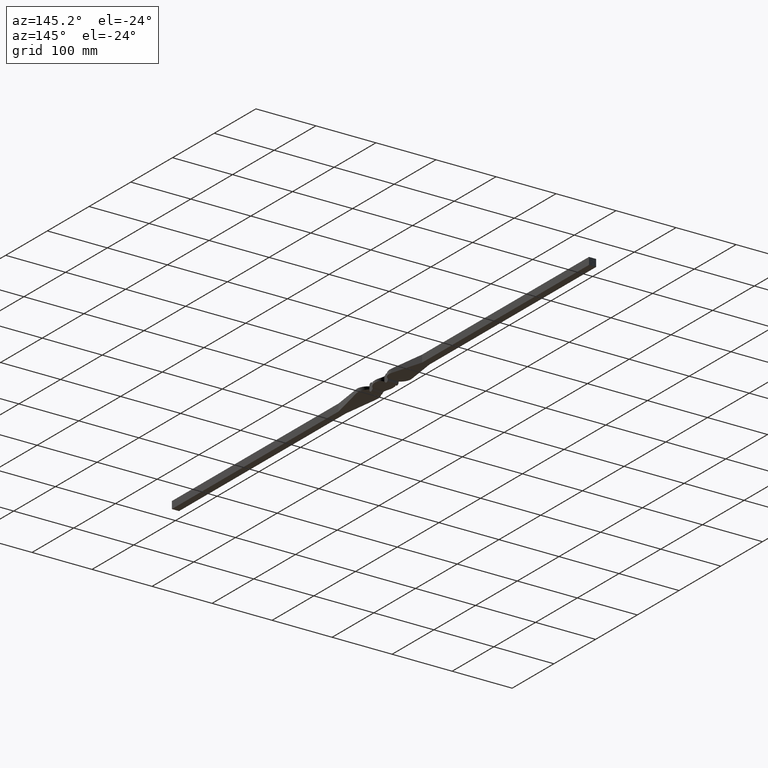
[diagram: clean part render]
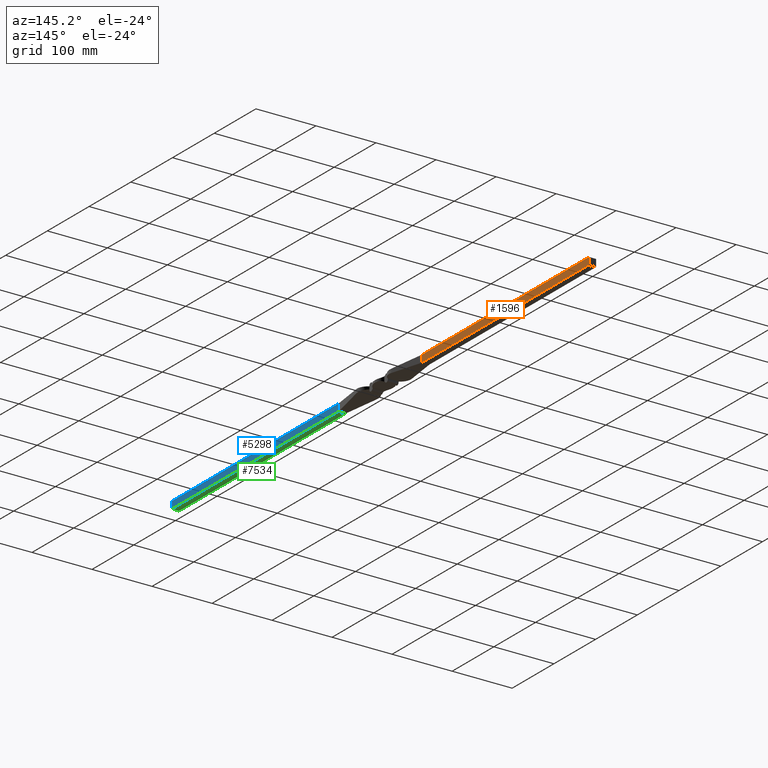
[diagram: same view with three faces highlighted in distinct colors, each labeled with its STEP entity id]
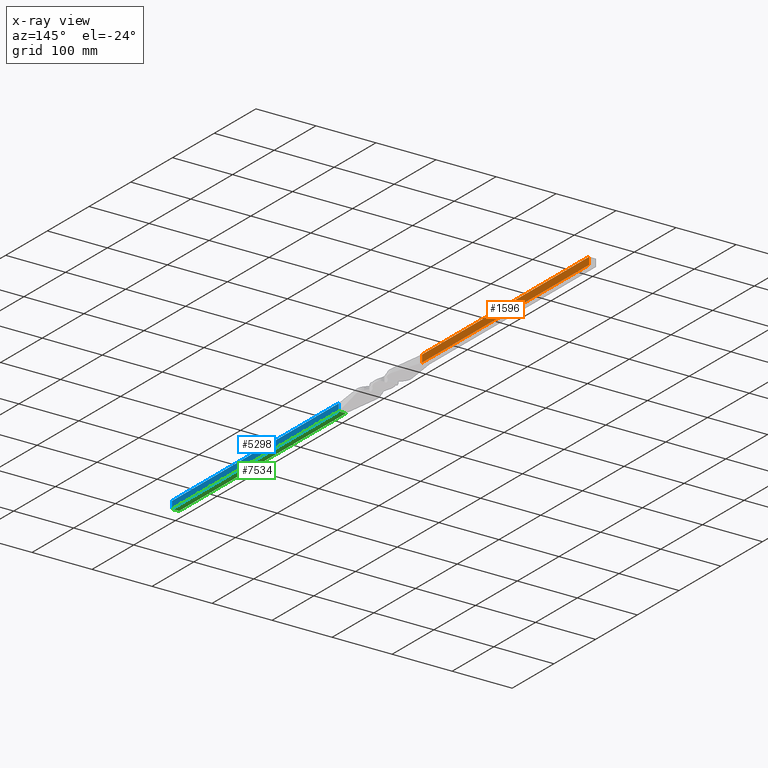
[diagram: x-ray of the same camera — body ghosted, the three highlighted faces saturated]
A machine part, auxiliary view with three faces highlighted in distinct colors.
The next image is the same camera in x-ray (body ghosted, the three faces saturated) — at least one of them is partly hidden behind the body in this view.
Their STEP definitions:

[orange] entity #1596 — the highlighted planar face has unit normal (-1, 0, 0).
#250 = CARTESIAN_POINT ( 'NONE',  ( 6.000000000000000000, 1016.970562748477278, 6.000000000000000000 ) ) ;
#416 = LINE ( 'NONE', #6827, #9128 ) ;
#1125 = ORIENTED_EDGE ( 'NONE', *, *, #8612, .F. ) ;
#1596 = ADVANCED_FACE ( 'NONE', ( #5770 ), #8974, .F. ) ;
#2204 = VECTOR ( 'NONE', #7290, 1000.000000000000000 ) ;
#2641 = ORIENTED_EDGE ( 'NONE', *, *, #9193, .F. ) ;
#3105 = CARTESIAN_POINT ( 'NONE',  ( 5.999999999999999112, 1016.970562748477278, -6.000000000000000000 ) ) ;
#4181 = DIRECTION ( 'NONE',  ( -7.228014483236695816E-17, -0.000000000000000000, -1.000000000000000000 ) ) ;
#4473 = VECTOR ( 'NONE', #5573, 1000.000000000000000 ) ;
#4723 = CARTESIAN_POINT ( 'NONE',  ( 5.999999999999999112, 500.0000000000000000, -6.000000000000000000 ) ) ;
#4750 = DIRECTION ( 'NONE',  ( -0.000000000000000000, -1.000000000000000000, -0.000000000000000000 ) ) ;
#5323 = VECTOR ( 'NONE', #4750, 1000.000000000000000 ) ;
#5504 = EDGE_LOOP ( 'NONE', ( #2641, #10612, #11378, #1125 ) ) ;
#5573 = DIRECTION ( 'NONE',  ( -0.000000000000000000, -1.000000000000000000, -0.000000000000000000 ) ) ;
#5770 = FACE_OUTER_BOUND ( 'NONE', #5504, .T. ) ;
#5965 = CARTESIAN_POINT ( 'NONE',  ( 5.999999999999999112, 500.0000000000000000, -6.000000000000000000 ) ) ;
#6038 = VERTEX_POINT ( 'NONE', #11314 ) ;
#6359 = VERTEX_POINT ( 'NONE', #9717 ) ;
#6452 = EDGE_CURVE ( 'NONE', #10468, #6038, #8740, .T. ) ;
#6543 = AXIS2_PLACEMENT_3D ( 'NONE', #9988, #9944, #10899 ) ;
#6827 = CARTESIAN_POINT ( 'NONE',  ( 5.999999999999999112, 100.0000000000000000, -6.000000000000000000 ) ) ;
#6847 = LINE ( 'NONE', #3105, #5323 ) ;
#7290 = DIRECTION ( 'NONE',  ( -7.228014483236695816E-17, 0.000000000000000000, -1.000000000000000000 ) ) ;
#7576 = LINE ( 'NONE', #4723, #2204 ) ;
#7736 = EDGE_CURVE ( 'NONE', #6038, #6359, #416, .T. ) ;
#8352 = CARTESIAN_POINT ( 'NONE',  ( 6.000000000000000000, 500.0000000000000000, 6.000000000000000000 ) ) ;
#8612 = EDGE_CURVE ( 'NONE', #11404, #6359, #6847, .T. ) ;
#8740 = LINE ( 'NONE', #250, #4473 ) ;
#8974 = PLANE ( 'NONE',  #6543 ) ;
#9128 = VECTOR ( 'NONE', #4181, 1000.000000000000000 ) ;
#9193 = EDGE_CURVE ( 'NONE', #10468, #11404, #7576, .T. ) ;
#9717 = CARTESIAN_POINT ( 'NONE',  ( 6.000000000000000000, 100.0000000000000000, -6.000000000000000000 ) ) ;
#9944 = DIRECTION ( 'NONE',  ( -1.000000000000000000, 0.000000000000000000, 7.228014483236695816E-17 ) ) ;
#9988 = CARTESIAN_POINT ( 'NONE',  ( 5.999999999999999112, 1016.970562748477278, -6.000000000000000000 ) ) ;
#10468 = VERTEX_POINT ( 'NONE', #8352 ) ;
#10612 = ORIENTED_EDGE ( 'NONE', *, *, #6452, .T. ) ;
#10899 = DIRECTION ( 'NONE',  ( 7.228014483236695816E-17, 0.000000000000000000, 1.000000000000000000 ) ) ;
#11314 = CARTESIAN_POINT ( 'NONE',  ( 6.000000000000000000, 100.0000000000000000, 6.000000000000000000 ) ) ;
#11378 = ORIENTED_EDGE ( 'NONE', *, *, #7736, .T. ) ;
#11404 = VERTEX_POINT ( 'NONE', #5965 ) ;

[blue] entity #5298 — the highlighted planar face has unit normal (-1, 0, 0).
#71 = CARTESIAN_POINT ( 'NONE',  ( 6.000000000000000000, -100.0000000000000284, 6.000000000000000000 ) ) ;
#422 = LINE ( 'NONE', #4488, #5470 ) ;
#489 = CARTESIAN_POINT ( 'NONE',  ( 6.000000000000000000, -100.0000000000000284, -6.000000000000000000 ) ) ;
#1172 = AXIS2_PLACEMENT_3D ( 'NONE', #9595, #6740, #11370 ) ;
#1243 = LINE ( 'NONE', #10375, #7871 ) ;
#1393 = VERTEX_POINT ( 'NONE', #7098 ) ;
#1440 = ORIENTED_EDGE ( 'NONE', *, *, #8157, .T. ) ;
#4109 = EDGE_LOOP ( 'NONE', ( #7101, #9406, #1440, #7685 ) ) ;
#4297 = EDGE_CURVE ( 'NONE', #1393, #11598, #422, .T. ) ;
#4488 = CARTESIAN_POINT ( 'NONE',  ( 5.999999999995758060, -1016.970562748477278, 6.000000000000000000 ) ) ;
#4978 = DIRECTION ( 'NONE',  ( 4.625929269271485322E-15, 1.000000000000000000, -0.000000000000000000 ) ) ;
#5298 = ADVANCED_FACE ( 'NONE', ( #7048 ), #7802, .F. ) ;
#5470 = VECTOR ( 'NONE', #8101, 1000.000000000000000 ) ;
#5558 = LINE ( 'NONE', #9248, #11024 ) ;
#5937 = CARTESIAN_POINT ( 'NONE',  ( 5.999999999998149036, -500.0000000000000000, -6.000000000000000000 ) ) ;
#6311 = VERTEX_POINT ( 'NONE', #489 ) ;
#6362 = DIRECTION ( 'NONE',  ( 0.000000000000000000, 0.000000000000000000, -1.000000000000000000 ) ) ;
#6681 = EDGE_CURVE ( 'NONE', #1393, #7226, #8600, .T. ) ;
#6740 = DIRECTION ( 'NONE',  ( -1.000000000000000000, 4.625929269271485322E-15, 0.000000000000000000 ) ) ;
#7048 = FACE_OUTER_BOUND ( 'NONE', #4109, .T. ) ;
#7098 = CARTESIAN_POINT ( 'NONE',  ( 6.000000000000000000, -500.0000000000000000, 6.000000000000000000 ) ) ;
#7101 = ORIENTED_EDGE ( 'NONE', *, *, #4297, .F. ) ;
#7226 = VERTEX_POINT ( 'NONE', #5937 ) ;
#7685 = ORIENTED_EDGE ( 'NONE', *, *, #10426, .F. ) ;
#7802 = PLANE ( 'NONE',  #1172 ) ;
#7871 = VECTOR ( 'NONE', #4978, 1000.000000000000000 ) ;
#8101 = DIRECTION ( 'NONE',  ( 4.625929269271485322E-15, 1.000000000000000000, -0.000000000000000000 ) ) ;
#8157 = EDGE_CURVE ( 'NONE', #7226, #6311, #1243, .T. ) ;
#8600 = LINE ( 'NONE', #9027, #9847 ) ;
#9027 = CARTESIAN_POINT ( 'NONE',  ( 5.999999999998149036, -500.0000000000000000, -6.000000000000000000 ) ) ;
#9091 = DIRECTION ( 'NONE',  ( 0.000000000000000000, 0.000000000000000000, -1.000000000000000000 ) ) ;
#9248 = CARTESIAN_POINT ( 'NONE',  ( 6.000000000000000000, -99.99999999999997158, 6.000000000000000000 ) ) ;
#9406 = ORIENTED_EDGE ( 'NONE', *, *, #6681, .T. ) ;
#9595 = CARTESIAN_POINT ( 'NONE',  ( 5.999999999995758060, -1016.970562748477278, -6.000000000000000000 ) ) ;
#9847 = VECTOR ( 'NONE', #6362, 1000.000000000000000 ) ;
#10375 = CARTESIAN_POINT ( 'NONE',  ( 5.999999999995758060, -1016.970562748477278, -6.000000000000000000 ) ) ;
#10426 = EDGE_CURVE ( 'NONE', #11598, #6311, #5558, .T. ) ;
#11024 = VECTOR ( 'NONE', #9091, 1000.000000000000000 ) ;
#11370 = DIRECTION ( 'NONE',  ( -4.625929269271485322E-15, -1.000000000000000000, 0.000000000000000000 ) ) ;
#11598 = VERTEX_POINT ( 'NONE', #71 ) ;

[green] entity #7534 — the highlighted planar face has unit normal (0, 0, 1).
#158 = LINE ( 'NONE', #3172, #9997 ) ;
#489 = CARTESIAN_POINT ( 'NONE',  ( 6.000000000000000000, -100.0000000000000284, -6.000000000000000000 ) ) ;
#581 = EDGE_LOOP ( 'NONE', ( #9221, #8885, #8723, #2767 ) ) ;
#1223 = CARTESIAN_POINT ( 'NONE',  ( -6.000000000004242828, -1016.970562748477278, -6.000000000000000000 ) ) ;
#1243 = LINE ( 'NONE', #10375, #7871 ) ;
#1347 = VERTEX_POINT ( 'NONE', #6799 ) ;
#1512 = EDGE_CURVE ( 'NONE', #7226, #1347, #1831, .T. ) ;
#1831 = LINE ( 'NONE', #9725, #10833 ) ;
#2216 = PLANE ( 'NONE',  #10316 ) ;
#2489 = EDGE_CURVE ( 'NONE', #6311, #7151, #158, .T. ) ;
#2767 = ORIENTED_EDGE ( 'NONE', *, *, #2489, .F. ) ;
#3172 = CARTESIAN_POINT ( 'NONE',  ( 0.000000000000000000, -100.0000000000000000, -6.000000000000000000 ) ) ;
#3211 = DIRECTION ( 'NONE',  ( -1.000000000000000000, 4.625929269271485322E-15, -0.000000000000000000 ) ) ;
#3521 = EDGE_CURVE ( 'NONE', #1347, #7151, #11077, .T. ) ;
#3982 = DIRECTION ( 'NONE',  ( 0.000000000000000000, 0.000000000000000000, 1.000000000000000000 ) ) ;
#4978 = DIRECTION ( 'NONE',  ( 4.625929269271485322E-15, 1.000000000000000000, -0.000000000000000000 ) ) ;
#5937 = CARTESIAN_POINT ( 'NONE',  ( 5.999999999998149036, -500.0000000000000000, -6.000000000000000000 ) ) ;
#5996 = DIRECTION ( 'NONE',  ( 4.625929269271485322E-15, 1.000000000000000000, -0.000000000000000000 ) ) ;
#6073 = CARTESIAN_POINT ( 'NONE',  ( -6.000000000004242828, -1016.970562748477278, -6.000000000000000000 ) ) ;
#6311 = VERTEX_POINT ( 'NONE', #489 ) ;
#6660 = DIRECTION ( 'NONE',  ( 1.000000000000000000, 0.000000000000000000, -0.000000000000000000 ) ) ;
#6799 = CARTESIAN_POINT ( 'NONE',  ( -6.000000000001850964, -500.0000000000000000, -6.000000000000000000 ) ) ;
#6994 = DIRECTION ( 'NONE',  ( -1.000000000000000000, 0.000000000000000000, 0.000000000000000000 ) ) ;
#7151 = VERTEX_POINT ( 'NONE', #10311 ) ;
#7226 = VERTEX_POINT ( 'NONE', #5937 ) ;
#7534 = ADVANCED_FACE ( 'NONE', ( #9965 ), #2216, .F. ) ;
#7871 = VECTOR ( 'NONE', #4978, 1000.000000000000000 ) ;
#8157 = EDGE_CURVE ( 'NONE', #7226, #6311, #1243, .T. ) ;
#8158 = VECTOR ( 'NONE', #5996, 1000.000000000000000 ) ;
#8723 = ORIENTED_EDGE ( 'NONE', *, *, #3521, .T. ) ;
#8885 = ORIENTED_EDGE ( 'NONE', *, *, #1512, .T. ) ;
#9221 = ORIENTED_EDGE ( 'NONE', *, *, #8157, .F. ) ;
#9725 = CARTESIAN_POINT ( 'NONE',  ( -6.000000000004242828, -500.0000000000000000, -6.000000000000000000 ) ) ;
#9965 = FACE_OUTER_BOUND ( 'NONE', #581, .T. ) ;
#9997 = VECTOR ( 'NONE', #3211, 1000.000000000000000 ) ;
#10311 = CARTESIAN_POINT ( 'NONE',  ( -6.000000000000000000, -100.0000000000000000, -6.000000000000000000 ) ) ;
#10316 = AXIS2_PLACEMENT_3D ( 'NONE', #1223, #3982, #6660 ) ;
#10375 = CARTESIAN_POINT ( 'NONE',  ( 5.999999999995758060, -1016.970562748477278, -6.000000000000000000 ) ) ;
#10833 = VECTOR ( 'NONE', #6994, 1000.000000000000000 ) ;
#11077 = LINE ( 'NONE', #6073, #8158 ) ;